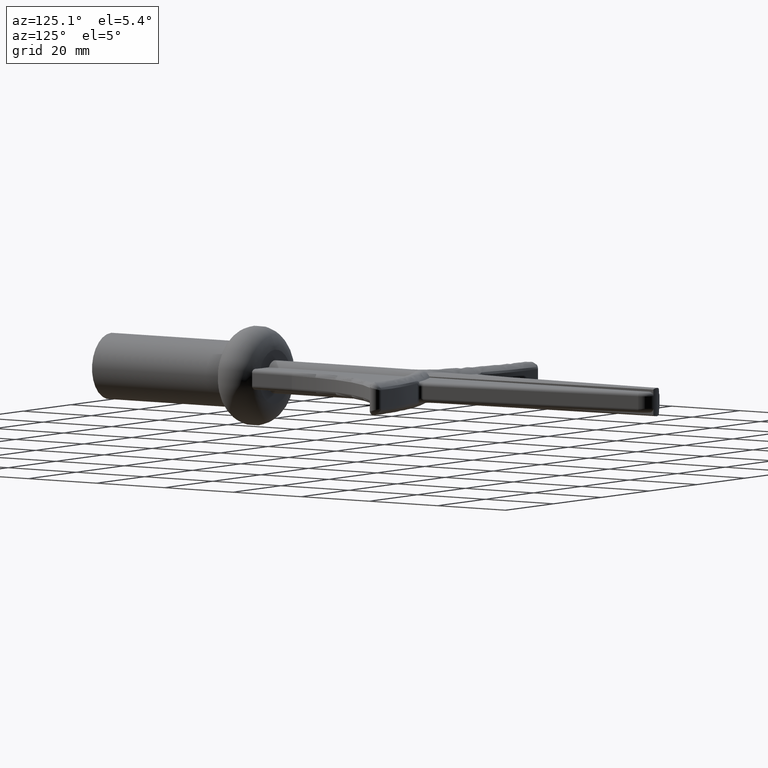
[diagram: clean part render]
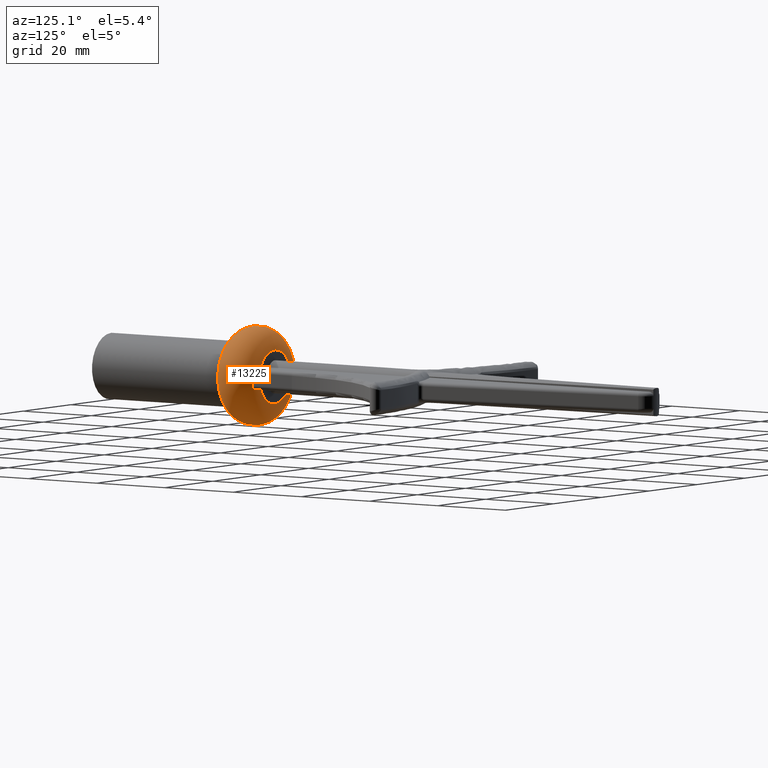
[diagram: same view with one face highlighted and labeled with its STEP entity id]
A machine part, auxiliary view. The second image highlights one B-rep face of the part: STEP entity #13225.
In plain terms, the highlighted toroidal blend (fillet) surface has major radius 6.5 mm and minor (blend) radius 5.5 mm.
Its self-contained STEP definition (entity closure, byte-faithful):
#70 = CARTESIAN_POINT ( 'NONE',  ( 8.354182716189434643, 47.55595625880771138, -2.307474251226778961 ) ) ;
#275 = ORIENTED_EDGE ( 'NONE', *, *, #7686, .F. ) ;
#525 = B_SPLINE_CURVE_WITH_KNOTS ( 'NONE', 3,
 ( #11474, #12747, #4149, #12699, #6431, #4205 ),
 .UNSPECIFIED., .F., .F.,
 ( 4, 2, 4 ),
 ( 0.02684078274611539222, 0.02768954908895127423, 0.02853831543178715624 ),
 .UNSPECIFIED. ) ;
#767 = VERTEX_POINT ( 'NONE', #7730 ) ;
#845 = DIRECTION ( 'NONE',  ( 0.000000000000000000, 0.000000000000000000, 1.000000000000000000 ) ) ;
#876 = CARTESIAN_POINT ( 'NONE',  ( -8.749999999999987566, 47.45951871451964621, -1.500000000000188072 ) ) ;
#929 = CARTESIAN_POINT ( 'NONE',  ( -8.722465605406679146, 47.44931308615819887, -1.768442093565551820 ) ) ;
#1173 = EDGE_CURVE ( 'NONE', #767, #12583, #10178, .T. ) ;
#1400 = DIRECTION ( 'NONE',  ( -0.000000000000000000, -1.000000000000000000, -0.000000000000000000 ) ) ;
#1669 = FACE_OUTER_BOUND ( 'NONE', #11876, .T. ) ;
#1955 = ORIENTED_EDGE ( 'NONE', *, *, #4603, .T. ) ;
#1969 = AXIS2_PLACEMENT_3D ( 'NONE', #11268, #13614, #13677 ) ;
#2046 = CARTESIAN_POINT ( 'NONE',  ( 8.006676765932846607, 47.66979429767870613, 2.474968190644684540 ) ) ;
#2209 = CARTESIAN_POINT ( 'NONE',  ( 7.879488712168595477, 47.71020238499619381, 2.500000000000000000 ) ) ;
#2431 = CARTESIAN_POINT ( 'NONE',  ( 8.722156576154423746, 47.44936232422832489, -1.769438817941847431 ) ) ;
#2778 = CARTESIAN_POINT ( 'NONE',  ( -8.749999999999987566, 47.45951871451924120, 1.500000000006524337 ) ) ;
#2846 = CARTESIAN_POINT ( 'NONE',  ( -8.749999999999987566, 47.45951871451964621, -1.500000000000188072 ) ) ;
#2927 = VERTEX_POINT ( 'NONE', #6989 ) ;
#3101 = AXIS2_PLACEMENT_3D ( 'NONE', #5445, #6986, #845 ) ;
#3197 = CARTESIAN_POINT ( 'NONE',  ( 6.596446905709911768, 48.00000000000000000, 2.500000000000000000 ) ) ;
#3261 = CARTESIAN_POINT ( 'NONE',  ( 8.541311784279722374, 47.49607525888054482, 2.125117834803621708 ) ) ;
#3332 = B_SPLINE_CURVE_WITH_KNOTS ( 'NONE', 3,
 ( #10771, #5886, #8577, #11146 ),
 .UNSPECIFIED., .F., .F.,
 ( 4, 4 ),
 ( 0.01160549365315997200, 0.01330546013588329406 ),
 .UNSPECIFIED. ) ;
#3337 = CARTESIAN_POINT ( 'NONE',  ( -7.749999999999987566, 47.74878401030802877, -2.499999999999999556 ) ) ;
#3608 = CARTESIAN_POINT ( 'NONE',  ( -7.467939793216043398, 47.83282485858943289, -2.499999999999999556 ) ) ;
#3616 = ORIENTED_EDGE ( 'NONE', *, *, #13829, .T. ) ;
#3646 = B_SPLINE_CURVE_WITH_KNOTS ( 'NONE', 3,
 ( #876, #13182, #929, #5852, #8315, #9364, #10575, #5757, #4575, #3337 ),
 .UNSPECIFIED., .F., .F.,
 ( 4, 2, 2, 2, 4 ),
 ( 1.858022667575326877E-16, 0.0004000662466577827687, 0.0008001324933153805725, 0.001200198739972978268, 0.001600264986630575963 ),
 .UNSPECIFIED. ) ;
#3712 = CARTESIAN_POINT ( 'NONE',  ( -8.749999999999987566, 47.49966407054260031, 1.004395821889841445 ) ) ;
#3747 = B_SPLINE_CURVE_WITH_KNOTS ( 'NONE', 3,
 ( #12828, #3197, #4438, #6762 ),
 .UNSPECIFIED., .F., .F.,
 ( 4, 4 ),
 ( 0.01160549365315997200, 0.01330546013588329406 ),
 .UNSPECIFIED. ) ;
#3752 = CARTESIAN_POINT ( 'NONE',  ( 8.005687791683453014, 47.67011368060843068, -2.475305582718121844 ) ) ;
#3811 = DIRECTION ( 'NONE',  ( -0.000000000000000000, 1.000000000000000000, -0.000000000000000000 ) ) ;
#3940 = EDGE_CURVE ( 'NONE', #9124, #10873, #13279, .T. ) ;
#4101 = VERTEX_POINT ( 'NONE', #4469 ) ;
#4133 = FACE_OUTER_BOUND ( 'NONE', #6834, .T. ) ;
#4149 = CARTESIAN_POINT ( 'NONE',  ( -7.179634873977771115, 47.89578355442610302, 2.499999999999999112 ) ) ;
#4158 = EDGE_CURVE ( 'NONE', #4101, #7234, #3332, .T. ) ;
#4188 = CARTESIAN_POINT ( 'NONE',  ( -8.749999999999989342, 47.44858140979230399, 1.635023685356604251 ) ) ;
#4205 = CARTESIAN_POINT ( 'NONE',  ( -6.000000000000027534, 48.00000000000000000, 2.500000000000000000 ) ) ;
#4214 = CARTESIAN_POINT ( 'NONE',  ( 8.749999999999989342, 47.51882117905601177, 0.4973623772755361161 ) ) ;
#4316 = B_SPLINE_CURVE_WITH_KNOTS ( 'NONE', 3,
 ( #6161, #3608, #12379, #5317, #11258, #8849 ),
 .UNSPECIFIED., .F., .F.,
 ( 4, 2, 4 ),
 ( 0.02684078274611539222, 0.02768954908895127423, 0.02853831543178715624 ),
 .UNSPECIFIED. ) ;
#4438 = CARTESIAN_POINT ( 'NONE',  ( 7.180142572478947827, 47.91857507071454592, 2.500000000000000000 ) ) ;
#4469 = CARTESIAN_POINT ( 'NONE',  ( 6.000000000000027534, 48.00000000000000000, -2.500000000000000000 ) ) ;
#4575 = CARTESIAN_POINT ( 'NONE',  ( -7.879488712168595477, 47.71020238499619381, -2.500000000000000444 ) ) ;
#4603 = EDGE_CURVE ( 'NONE', #14731, #4101, #8341, .T. ) ;
#4671 = VERTEX_POINT ( 'NONE', #6488 ) ;
#4994 = CARTESIAN_POINT ( 'NONE',  ( 8.541269999482544506, 47.49608472909298484, -2.125254515261729704 ) ) ;
#5169 = ORIENTED_EDGE ( 'NONE', *, *, #4158, .T. ) ;
#5257 = CARTESIAN_POINT ( 'NONE',  ( -8.244533865398592454, 47.59248643209794949, 2.378654358932461133 ) ) ;
#5317 = CARTESIAN_POINT ( 'NONE',  ( -6.590606992451871982, 47.97977762640357469, -2.499999999999999112 ) ) ;
#5445 = CARTESIAN_POINT ( 'NONE',  ( 0.000000000000000000, 48.00000000000000000, 0.000000000000000000 ) ) ;
#5668 = CARTESIAN_POINT ( 'NONE',  ( 8.354895953382767360, 47.55572412321942721, 2.306875165630148938 ) ) ;
#5757 = CARTESIAN_POINT ( 'NONE',  ( -8.006676765932846607, 47.66979429767869902, -2.474968190644683652 ) ) ;
#5852 = CARTESIAN_POINT ( 'NONE',  ( -8.618262106182900339, 47.47302538262072602, -2.013684169761602583 ) ) ;
#5886 = CARTESIAN_POINT ( 'NONE',  ( 6.596446905709911768, 48.00000000000000000, -2.500000000000000000 ) ) ;
#5933 = EDGE_CURVE ( 'NONE', #9124, #6287, #3646, .T. ) ;
#6118 = ORIENTED_EDGE ( 'NONE', *, *, #8684, .F. ) ;
#6161 = CARTESIAN_POINT ( 'NONE',  ( -7.749999999999987566, 47.74878401030802877, -2.499999999999999556 ) ) ;
#6276 = CIRCLE ( 'NONE', #3101, 6.500000000000026645 ) ;
#6287 = VERTEX_POINT ( 'NONE', #9490 ) ;
#6427 = CARTESIAN_POINT ( 'NONE',  ( -6.000000000000027534, 48.00000000000000000, 2.500000000000000000 ) ) ;
#6431 = CARTESIAN_POINT ( 'NONE',  ( -6.294564982840832990, 47.99999999999999289, 2.499999999999998668 ) ) ;
#6488 = CARTESIAN_POINT ( 'NONE',  ( 8.749999999999987566, 47.45951871451924120, -1.500000000006524337 ) ) ;
#6762 = CARTESIAN_POINT ( 'NONE',  ( 7.749999999999986677, 47.74878401030802877, 2.500000000000000000 ) ) ;
#6834 = EDGE_LOOP ( 'NONE', ( #5169, #10212, #6118, #10088, #275, #7087, #9570, #12558, #15555, #15000, #3616, #1955 ) ) ;
#6933 = B_SPLINE_CURVE_WITH_KNOTS ( 'NONE', 3,
 ( #10304, #12610, #4214, #10082, #13744, #10192 ),
 .UNSPECIFIED., .F., .F.,
 ( 4, 2, 4 ),
 ( 0.04081476579769481583, 0.04230323135152545821, 0.04379169690535610060 ),
 .UNSPECIFIED. ) ;
#6986 = DIRECTION ( 'NONE',  ( -0.000000000000000000, 1.000000000000000000, -0.000000000000000000 ) ) ;
#6989 = CARTESIAN_POINT ( 'NONE',  ( -7.749999999999984901, 47.74878401030802877, 2.499999999999999556 ) ) ;
#6992 = CARTESIAN_POINT ( 'NONE',  ( 8.722465605406677369, 47.44931308615820598, 1.768442093565557593 ) ) ;
#7087 = ORIENTED_EDGE ( 'NONE', *, *, #10163, .F. ) ;
#7234 = VERTEX_POINT ( 'NONE', #9680 ) ;
#7393 = CARTESIAN_POINT ( 'NONE',  ( 8.244533865398590677, 47.59248643209793528, -2.378654358932461133 ) ) ;
#7497 = CARTESIAN_POINT ( 'NONE',  ( 8.749999999999987566, 47.45951871451924120, -1.500000000006524337 ) ) ;
#7593 = VERTEX_POINT ( 'NONE', #12517 ) ;
#7599 = CARTESIAN_POINT ( 'NONE',  ( 7.749999999999986677, 47.74878401030802877, 2.500000000000000000 ) ) ;
#7686 = EDGE_CURVE ( 'NONE', #7593, #12583, #3747, .T. ) ;
#7730 = CARTESIAN_POINT ( 'NONE',  ( 8.749999999999987566, 47.45951871451964621, 1.500000000000194733 ) ) ;
#8315 = CARTESIAN_POINT ( 'NONE',  ( -8.541311784279727704, 47.49607525888055903, -2.125117834803618599 ) ) ;
#8341 = CIRCLE ( 'NONE', #13119, 6.500000000000026645 ) ;
#8430 = CARTESIAN_POINT ( 'NONE',  ( 0.000000000000000000, 48.00000000000000000, 0.000000000000000000 ) ) ;
#8554 = CARTESIAN_POINT ( 'NONE',  ( -6.000000000000027534, 48.00000000000000000, -2.500000000000000000 ) ) ;
#8577 = CARTESIAN_POINT ( 'NONE',  ( 7.180142572478947827, 47.91857507071454592, -2.500000000000000000 ) ) ;
#8582 = CARTESIAN_POINT ( 'NONE',  ( 8.749999999999989342, 47.44858140979231109, -1.635023685356603806 ) ) ;
#8627 = DIRECTION ( 'NONE',  ( 0.000000000000000000, 0.000000000000000000, 1.000000000000000000 ) ) ;
#8671 = CARTESIAN_POINT ( 'NONE',  ( 8.617949037681849944, 47.47311783398106400, -2.014149932569620827 ) ) ;
#8684 = EDGE_CURVE ( 'NONE', #767, #4671, #6933, .T. ) ;
#8729 = CARTESIAN_POINT ( 'NONE',  ( 7.879595796282711007, 47.71017047890106255, -2.500000000000000000 ) ) ;
#8849 = CARTESIAN_POINT ( 'NONE',  ( -6.000000000000027534, 48.00000000000000000, -2.500000000000000000 ) ) ;
#9124 = VERTEX_POINT ( 'NONE', #2846 ) ;
#9127 = EDGE_CURVE ( 'NONE', #2927, #11184, #525, .T. ) ;
#9364 = CARTESIAN_POINT ( 'NONE',  ( -8.354895953382772689, 47.55572412321943432, -2.306875165630147162 ) ) ;
#9449 = CARTESIAN_POINT ( 'NONE',  ( 8.618262106182896787, 47.47302538262071891, 2.013684169761607023 ) ) ;
#9490 = CARTESIAN_POINT ( 'NONE',  ( -7.749999999999987566, 47.74878401030802877, -2.499999999999999556 ) ) ;
#9561 = CARTESIAN_POINT ( 'NONE',  ( 8.749999999999987566, 47.44859524316387933, 1.634852909021624834 ) ) ;
#9570 = ORIENTED_EDGE ( 'NONE', *, *, #9127, .F. ) ;
#9680 = CARTESIAN_POINT ( 'NONE',  ( 7.749999999999987566, 47.74878401030803587, -2.500000000000000000 ) ) ;
#9742 = CARTESIAN_POINT ( 'NONE',  ( -8.749999999999989342, 47.51882117905601177, -0.4973623772755348393 ) ) ;
#9746 = CARTESIAN_POINT ( 'NONE',  ( 7.749999999999987566, 47.74878401030803587, -2.500000000000000000 ) ) ;
#10082 = CARTESIAN_POINT ( 'NONE',  ( 8.749999999999987566, 47.51860788833926108, -0.5056629476916351118 ) ) ;
#10088 = ORIENTED_EDGE ( 'NONE', *, *, #1173, .T. ) ;
#10108 = CARTESIAN_POINT ( 'NONE',  ( -7.749999999999984901, 47.74878401030802877, 2.499999999999999556 ) ) ;
#10163 = EDGE_CURVE ( 'NONE', #11184, #7593, #6276, .T. ) ;
#10178 = B_SPLINE_CURVE_WITH_KNOTS ( 'NONE', 3,
 ( #14456, #9561, #6992, #9449, #3261, #5668, #15443, #2046, #2209, #10596 ),
 .UNSPECIFIED., .F., .F.,
 ( 4, 2, 2, 2, 4 ),
 ( 1.922277915879399980E-16, 0.0004000662466577884066, 0.0008001324933153845841, 0.001200198739972980653, 0.001600264986630576831 ),
 .UNSPECIFIED. ) ;
#10192 = CARTESIAN_POINT ( 'NONE',  ( 8.749999999999987566, 47.45951871451924120, -1.500000000006524337 ) ) ;
#10212 = ORIENTED_EDGE ( 'NONE', *, *, #12372, .T. ) ;
#10304 = CARTESIAN_POINT ( 'NONE',  ( 8.749999999999987566, 47.45951871451964621, 1.500000000000194733 ) ) ;
#10559 = CARTESIAN_POINT ( 'NONE',  ( -8.749999999999987566, 47.45951871451924120, 1.500000000006524337 ) ) ;
#10575 = CARTESIAN_POINT ( 'NONE',  ( -8.244387970603479943, 47.59253179891464214, -2.378650368156346673 ) ) ;
#10596 = CARTESIAN_POINT ( 'NONE',  ( 7.749999999999986677, 47.74878401030802877, 2.500000000000000000 ) ) ;
#10616 = VERTEX_POINT ( 'NONE', #11186 ) ;
#10771 = CARTESIAN_POINT ( 'NONE',  ( 6.000000000000027534, 48.00000000000000000, -2.500000000000000000 ) ) ;
#10873 = VERTEX_POINT ( 'NONE', #10559 ) ;
#11146 = CARTESIAN_POINT ( 'NONE',  ( 7.749999999999987566, 47.74878401030803587, -2.500000000000000000 ) ) ;
#11156 = DIRECTION ( 'NONE',  ( 0.000000000000000000, 0.000000000000000000, -1.000000000000000000 ) ) ;
#11184 = VERTEX_POINT ( 'NONE', #6427 ) ;
#11186 = CARTESIAN_POINT ( 'NONE',  ( 0.000000000000000000, 37.20849737787082034, 8.000000000000000000 ) ) ;
#11245 = EDGE_CURVE ( 'NONE', #2927, #10873, #13620, .T. ) ;
#11258 = CARTESIAN_POINT ( 'NONE',  ( -6.294564982840832990, 47.99999999999999289, -2.499999999999998668 ) ) ;
#11268 = CARTESIAN_POINT ( 'NONE',  ( 0.000000000000000000, 37.20849737787082034, 0.000000000000000000 ) ) ;
#11456 = CARTESIAN_POINT ( 'NONE',  ( -8.354182716189434643, 47.55595625880771848, 2.307474251226779849 ) ) ;
#11474 = CARTESIAN_POINT ( 'NONE',  ( -7.749999999999984901, 47.74878401030802877, 2.499999999999999556 ) ) ;
#11512 = CARTESIAN_POINT ( 'NONE',  ( -8.005687791683454790, 47.67011368060843068, 2.475305582718121844 ) ) ;
#11876 = EDGE_LOOP ( 'NONE', ( #14145 ) ) ;
#12031 = EDGE_CURVE ( 'NONE', #10616, #10616, #15694, .T. ) ;
#12267 = CARTESIAN_POINT ( 'NONE',  ( 0.000000000000000000, 42.50000000000000000, 0.000000000000000000 ) ) ;
#12356 = TOROIDAL_SURFACE ( 'NONE', #13415, 6.500000000000026645, 5.499999999999994671 ) ;
#12372 = EDGE_CURVE ( 'NONE', #7234, #4671, #14057, .T. ) ;
#12379 = CARTESIAN_POINT ( 'NONE',  ( -7.179634873977771115, 47.89578355442610302, -2.499999999999999112 ) ) ;
#12517 = CARTESIAN_POINT ( 'NONE',  ( 6.000000000000027534, 48.00000000000000000, 2.500000000000000000 ) ) ;
#12526 = CARTESIAN_POINT ( 'NONE',  ( -8.617949037681851721, 47.47311783398107110, 2.014149932569621715 ) ) ;
#12558 = ORIENTED_EDGE ( 'NONE', *, *, #11245, .T. ) ;
#12583 = VERTEX_POINT ( 'NONE', #7599 ) ;
#12610 = CARTESIAN_POINT ( 'NONE',  ( 8.749999999999987566, 47.50000375218095172, 1.000202369496602905 ) ) ;
#12618 = CARTESIAN_POINT ( 'NONE',  ( -8.749999999999987566, 47.51860788833926108, 0.5056629476916338906 ) ) ;
#12683 = CARTESIAN_POINT ( 'NONE',  ( -8.722156576154423746, 47.44936232422832489, 1.769438817941847653 ) ) ;
#12699 = CARTESIAN_POINT ( 'NONE',  ( -6.590606992451871982, 47.97977762640357469, 2.499999999999999112 ) ) ;
#12747 = CARTESIAN_POINT ( 'NONE',  ( -7.467939793216043398, 47.83282485858943289, 2.499999999999999556 ) ) ;
#12828 = CARTESIAN_POINT ( 'NONE',  ( 6.000000000000027534, 48.00000000000000000, 2.500000000000000000 ) ) ;
#13119 = AXIS2_PLACEMENT_3D ( 'NONE', #8430, #1400, #11156 ) ;
#13182 = CARTESIAN_POINT ( 'NONE',  ( -8.749999999999987566, 47.44859524316388644, -1.634852909021625278 ) ) ;
#13225 = ADVANCED_FACE ( 'NONE', ( #1669, #4133 ), #12356, .T. ) ;
#13279 = B_SPLINE_CURVE_WITH_KNOTS ( 'NONE', 3,
 ( #14630, #15779, #9742, #12618, #3712, #13736 ),
 .UNSPECIFIED., .F., .F.,
 ( 4, 2, 4 ),
 ( 0.04081476579769482277, 0.04230323135152545821, 0.04379169690535610060 ),
 .UNSPECIFIED. ) ;
#13415 = AXIS2_PLACEMENT_3D ( 'NONE', #12267, #3811, #8627 ) ;
#13614 = DIRECTION ( 'NONE',  ( 0.000000000000000000, -1.000000000000000000, 0.000000000000000000 ) ) ;
#13620 = B_SPLINE_CURVE_WITH_KNOTS ( 'NONE', 3,
 ( #10108, #13874, #11512, #5257, #11456, #13775, #12526, #12683, #4188, #2778 ),
 .UNSPECIFIED., .F., .F.,
 ( 4, 2, 2, 2, 4 ),
 ( 1.788112030672749005E-18, 0.0003999375739269535996, 0.0007998751478539053560, 0.001199812721780857058, 0.001599750295707808977 ),
 .UNSPECIFIED. ) ;
#13677 = DIRECTION ( 'NONE',  ( 0.000000000000000000, 0.000000000000000000, 1.000000000000000000 ) ) ;
#13736 = CARTESIAN_POINT ( 'NONE',  ( -8.749999999999987566, 47.45951871451924120, 1.500000000006524337 ) ) ;
#13744 = CARTESIAN_POINT ( 'NONE',  ( 8.749999999999987566, 47.49966407054260031, -1.004395821889840112 ) ) ;
#13775 = CARTESIAN_POINT ( 'NONE',  ( -8.541269999482544506, 47.49608472909298484, 2.125254515261730592 ) ) ;
#13829 = EDGE_CURVE ( 'NONE', #6287, #14731, #4316, .T. ) ;
#13874 = CARTESIAN_POINT ( 'NONE',  ( -7.879595796282711007, 47.71017047890105545, 2.499999999999999556 ) ) ;
#14057 = B_SPLINE_CURVE_WITH_KNOTS ( 'NONE', 3,
 ( #9746, #8729, #3752, #7393, #70, #4994, #8671, #2431, #8582, #7497 ),
 .UNSPECIFIED., .F., .F.,
 ( 4, 2, 2, 2, 4 ),
 ( 8.673617379884035472E-19, 0.0003999375739269527322, 0.0007998751478539045971, 0.001199812721780856408, 0.001599750295707808977 ),
 .UNSPECIFIED. ) ;
#14145 = ORIENTED_EDGE ( 'NONE', *, *, #12031, .F. ) ;
#14456 = CARTESIAN_POINT ( 'NONE',  ( 8.749999999999987566, 47.45951871451964621, 1.500000000000194733 ) ) ;
#14630 = CARTESIAN_POINT ( 'NONE',  ( -8.749999999999987566, 47.45951871451964621, -1.500000000000188072 ) ) ;
#14731 = VERTEX_POINT ( 'NONE', #8554 ) ;
#15000 = ORIENTED_EDGE ( 'NONE', *, *, #5933, .T. ) ;
#15443 = CARTESIAN_POINT ( 'NONE',  ( 8.244387970603476390, 47.59253179891464214, 2.378650368156347561 ) ) ;
#15555 = ORIENTED_EDGE ( 'NONE', *, *, #3940, .F. ) ;
#15694 = CIRCLE ( 'NONE', #1969, 8.000000000000000000 ) ;
#15779 = CARTESIAN_POINT ( 'NONE',  ( -8.749999999999987566, 47.50000375218095172, -1.000202369496597354 ) ) ;